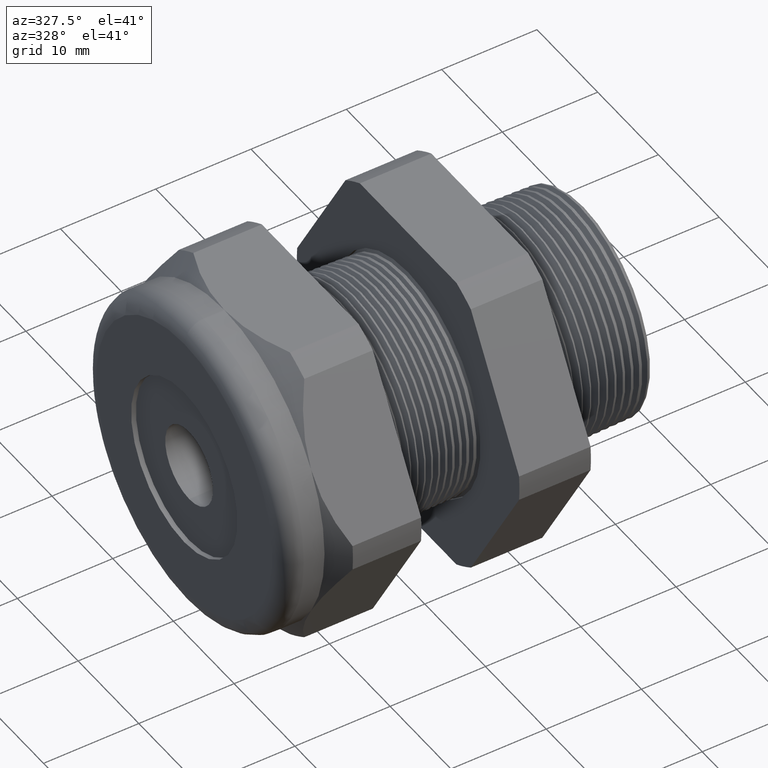
[diagram: clean part render]
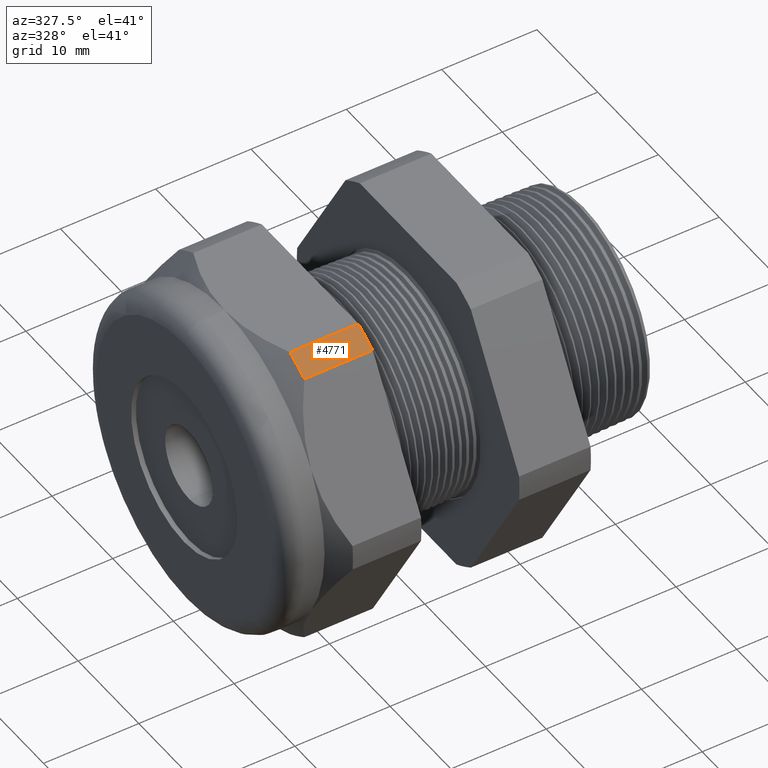
[diagram: same view with one face highlighted and labeled with its STEP entity id]
A machine part, auxiliary view. The second image highlights one B-rep face of the part: STEP entity #4771.
In plain terms, the highlighted cylindrical surface (partial cylindrical patch) has radius 18.3261 mm, axis along (-1, 0, 0).
Its self-contained STEP definition (entity closure, byte-faithful):
#2582 = CARTESIAN_POINT ( 'NONE',  ( -1.293145669291338600, -0.4063420493440885700, 0.5961949252843791200 ) ) ;
#2583 = CARTESIAN_POINT ( 'NONE',  ( -1.010314960629921100, -0.4063420493440885700, 0.5961949252843791200 ) ) ;
#2584 = DIRECTION ( 'NONE',  ( -1.000000000000000000, 0.0000000000000000000, 0.0000000000000000000 ) ) ;
#2585 = VECTOR ( 'NONE', #2584, 39.37007874015748100 ) ;
#2586 = CARTESIAN_POINT ( 'NONE',  ( 0.1200000000000000900, -0.4063420493440885700, 0.5961949252843791200 ) ) ;
#2587 = LINE ( 'NONE', #2586, #2585 ) ;
#2674 = DIRECTION ( 'NONE',  ( 0.0000000000000000000, 0.0000000000000000000, -1.000000000000000000 ) ) ;
#2675 = DIRECTION ( 'NONE',  ( 1.000000000000000000, 0.0000000000000000000, 0.0000000000000000000 ) ) ;
#2676 = CARTESIAN_POINT ( 'NONE',  ( -1.010314960629921100, 0.0000000000000000000, 0.0000000000000000000 ) ) ;
#2677 = AXIS2_PLACEMENT_3D ( 'NONE', #2676, #2675, #2674 ) ;
#2678 = CIRCLE ( 'NONE', #2677, 0.7215000000000000300 ) ;
#2679 = DIRECTION ( 'NONE',  ( 0.0000000000000000000, 0.0000000000000000000, -1.000000000000000000 ) ) ;
#2680 = DIRECTION ( 'NONE',  ( 1.000000000000000000, 0.0000000000000000000, 0.0000000000000000000 ) ) ;
#2681 = CARTESIAN_POINT ( 'NONE',  ( -1.293145669291338600, 0.0000000000000000000, 0.0000000000000000000 ) ) ;
#2682 = AXIS2_PLACEMENT_3D ( 'NONE', #2681, #2680, #2679 ) ;
#2683 = CIRCLE ( 'NONE', #2682, 0.7215000000000000300 ) ;
#2722 = DIRECTION ( 'NONE',  ( 0.0000000000000000000, 0.0000000000000000000, 1.000000000000000000 ) ) ;
#2723 = DIRECTION ( 'NONE',  ( -1.000000000000000000, 0.0000000000000000000, 0.0000000000000000000 ) ) ;
#2724 = CARTESIAN_POINT ( 'NONE',  ( 0.1200000000000000900, 0.0000000000000000000, 0.0000000000000000000 ) ) ;
#2725 = AXIS2_PLACEMENT_3D ( 'NONE', #2724, #2723, #2722 ) ;
#2726 = LINE ( 'NONE', #2784, #2783 ) ;
#2727 = CYLINDRICAL_SURFACE ( 'NONE', #2725, 0.7215000000000000300 ) ;
#2728 = FACE_OUTER_BOUND ( 'NONE', #4772, .T. ) ;
#2780 = CARTESIAN_POINT ( 'NONE',  ( -1.293145669291338800, -0.3131489262315937900, 0.6499999999999999100 ) ) ;
#2781 = CARTESIAN_POINT ( 'NONE',  ( -1.010314960629921100, -0.3131489262315937400, 0.6500000000000000200 ) ) ;
#2782 = DIRECTION ( 'NONE',  ( -1.000000000000000000, 0.0000000000000000000, 0.0000000000000000000 ) ) ;
#2783 = VECTOR ( 'NONE', #2782, 39.37007874015748100 ) ;
#2784 = CARTESIAN_POINT ( 'NONE',  ( 0.1200000000000000900, -0.3131489262315937400, 0.6500000000000000200 ) ) ;
#4706 = EDGE_CURVE ( 'NONE', #4707, #4708, #2587, .T. ) ;
#4707 = VERTEX_POINT ( 'NONE', #2583 ) ;
#4708 = VERTEX_POINT ( 'NONE', #2582 ) ;
#4750 = EDGE_CURVE ( 'NONE', #4776, #4708, #2683, .T. ) ;
#4751 = ORIENTED_EDGE ( 'NONE', *, *, #4706, .F. ) ;
#4752 = ORIENTED_EDGE ( 'NONE', *, *, #4753, .F. ) ;
#4753 = EDGE_CURVE ( 'NONE', #4775, #4707, #2678, .T. ) ;
#4771 = ADVANCED_FACE ( 'NONE', ( #2728 ), #2727, .T. ) ;
#4772 = EDGE_LOOP ( 'NONE', ( #4773, #4777, #4751, #4752 ) ) ;
#4773 = ORIENTED_EDGE ( 'NONE', *, *, #4774, .T. ) ;
#4774 = EDGE_CURVE ( 'NONE', #4775, #4776, #2726, .T. ) ;
#4775 = VERTEX_POINT ( 'NONE', #2781 ) ;
#4776 = VERTEX_POINT ( 'NONE', #2780 ) ;
#4777 = ORIENTED_EDGE ( 'NONE', *, *, #4750, .T. ) ;